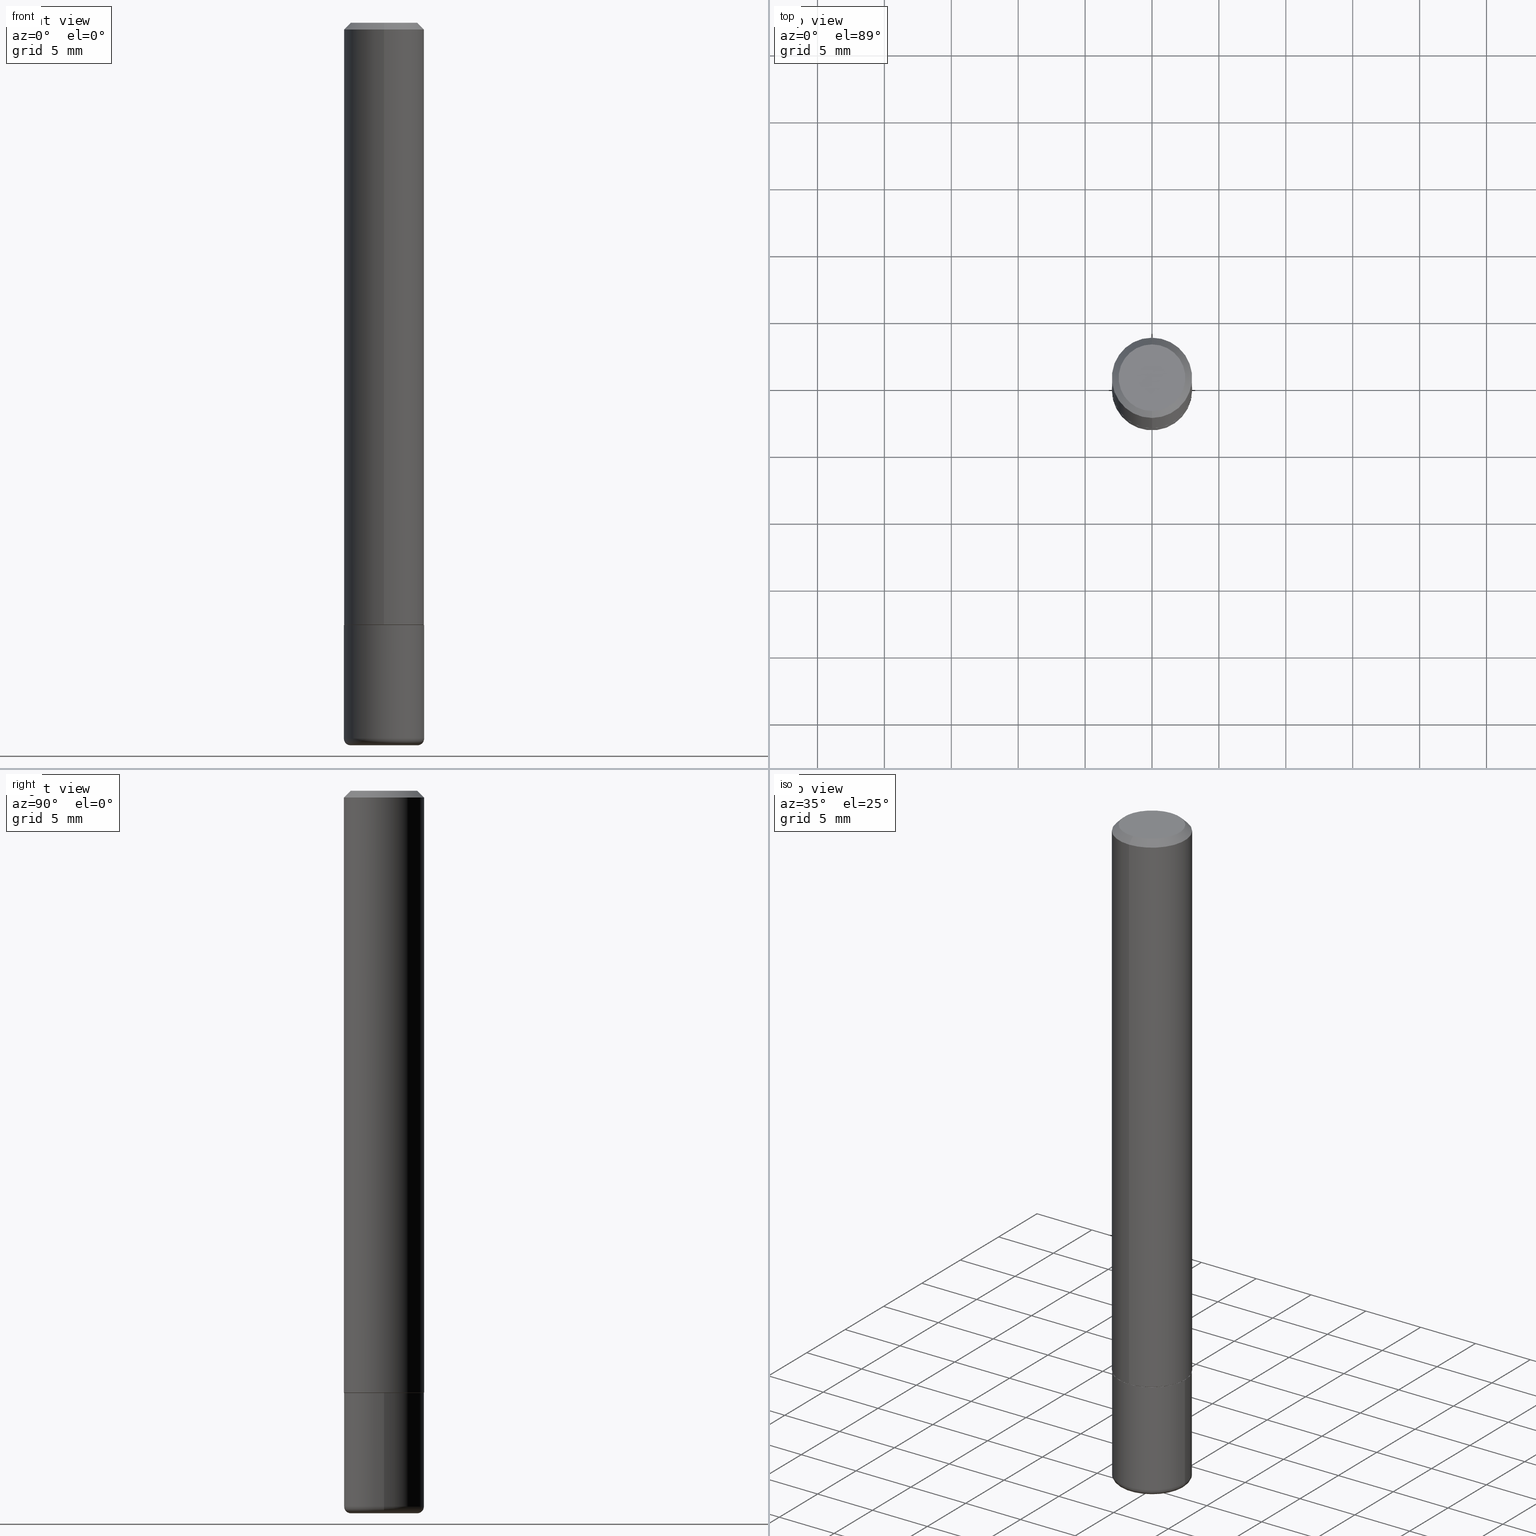
[diagram: canonical four-view strip — front | top / right | iso, engineering-drawing reading convention]
A machine part, canonical four-view strip (front | top / right | iso — engineering-drawing reading convention). The complete STEP part file that produces these views, byte-faithful:
ISO-10303-21;
HEADER;
FILE_DESCRIPTION (( 'STEP AP203' ),
    '1' );
FILE_NAME ('48000.STEP',
    '2024-03-06T19:44:10',
    ( '' ),
    ( '' ),
    'SwSTEP 2.0',
    'SolidWorks 2023',
    '' );
FILE_SCHEMA (( 'CONFIG_CONTROL_DESIGN' ));
ENDSEC;

DATA;
#1 = EDGE_LOOP ( 'NONE', ( #162, #202 ) ) ;
#2 = EDGE_LOOP ( 'NONE', ( #127, #259, #395, #104 ) ) ;
#3 = CARTESIAN_POINT ( 'NONE',  ( 8.355982572539224609E-16, 0.1170999999999938479, -1.771700000000000719 ) ) ;
#4 = ORIENTED_EDGE ( 'NONE', *, *, #182, .F. ) ;
#5 = AXIS2_PLACEMENT_3D ( 'NONE', #196, #264, #228 ) ;
#6 = ADVANCED_FACE ( 'NONE', ( #70 ), #74, .T. ) ;
#7 = ORIENTED_EDGE ( 'NONE', *, *, #145, .T. ) ;
#8 = CARTESIAN_POINT ( 'NONE',  ( -0.1181000000000000383, 8.391509709326785915E-16, -5.809262341591045886E-30 ) ) ;
#9 = EDGE_LOOP ( 'NONE', ( #177, #320, #408, #301 ) ) ;
#10 = PERSON_AND_ORGANIZATION ( #123, #98 ) ;
#11 = CARTESIAN_POINT ( 'NONE',  ( 4.320540136464565955E-29, -6.203181005297505252E-15, -1.771700000000000053 ) ) ;
#12 = AXIS2_PLACEMENT_3D ( 'NONE', #257, #95, #348 ) ;
#13 = EDGE_CURVE ( 'NONE', #164, #290, #186, .T. ) ;
#14 = APPROVAL_ROLE ( '' ) ;
#15 = COORDINATED_UNIVERSAL_TIME_OFFSET ( 5, 0, .BEHIND. ) ;
#16 = ADVANCED_FACE ( 'NONE', ( #212 ), #411, .T. ) ;
#17 = CARTESIAN_POINT ( 'NONE',  ( 8.246878922347486570E-16, 0.1180999999999999689, -0.02000000000000048961 ) ) ;
#18 = PERSON_AND_ORGANIZATION ( #123, #98 ) ;
#19 = CARTESIAN_POINT ( 'NONE',  ( 0.000000000000000000, 0.000000000000000000, 0.000000000000000000 ) ) ;
#20 = CIRCLE ( 'NONE', #12, 0.1181000000000000383 ) ;
#21 = PERSON_AND_ORGANIZATION ( #123, #98 ) ;
#22 = FACE_OUTER_BOUND ( 'NONE', #31, .T. ) ;
#23 = DIRECTION ( 'NONE',  ( 2.438088387897960049E-29, -3.491481338843145188E-15, -1.000000000000000000 ) ) ;
#24 = FACE_OUTER_BOUND ( 'NONE', #9, .T. ) ;
#25 = EDGE_CURVE ( 'NONE', #286, #195, #92, .T. ) ;
#26 = LINE ( 'NONE', #121, #312 ) ;
#27 = CONICAL_SURFACE ( 'NONE', #261, 0.1181000000000000383, 0.7853981633974471688 ) ;
#28 = CARTESIAN_POINT ( 'NONE',  ( 8.391509709327015671E-16, 0.1180999999999940708, -1.770700000000000385 ) ) ;
#29 = FACE_OUTER_BOUND ( 'NONE', #387, .T. ) ;
#30 = VECTOR ( 'NONE', #385, 39.37007874015748143 ) ;
#31 = EDGE_LOOP ( 'NONE', ( #136, #134, #35, #173 ) ) ;
#32 = EDGE_CURVE ( 'NONE', #197, #100, #154, .T. ) ;
#33 = CARTESIAN_POINT ( 'NONE',  ( 4.320540136464565955E-29, -6.203181005297505252E-15, -1.771700000000000053 ) ) ;
#34 = CARTESIAN_POINT ( 'NONE',  ( 8.391509709326791832E-16, 0.1181000000000001354, -4.134987168965605036E-16 ) ) ;
#35 = ORIENTED_EDGE ( 'NONE', *, *, #354, .T. ) ;
#36 = CARTESIAN_POINT ( 'NONE',  ( -5.748544850938659328E-45, 8.253427372768935186E-31, 2.357273996010603310E-16 ) ) ;
#37 = ORIENTED_EDGE ( 'NONE', *, *, #106, .F. ) ;
#38 = PRODUCT_DEFINITION ( 'UNKNOWN', '', #81, #47 ) ;
#39 = TOROIDAL_SURFACE ( 'NONE', #187, 0.09840000000000002911, 0.01969999999999989468 ) ;
#40 = ORIENTED_EDGE ( 'NONE', *, *, #55, .F. ) ;
#41 = ORIENTED_EDGE ( 'NONE', *, *, #362, .T. ) ;
#42 = PRODUCT_DEFINITION_SHAPE ( 'NONE', 'NONE',  #38 ) ;
#43 = APPROVAL_STATUS ( 'not_yet_approved' ) ;
#44 = DIRECTION ( 'NONE',  ( -6.982962677686265133E-15, -1.000000000000000000, 4.626330217890359081E-15 ) ) ;
#45 = CALENDAR_DATE ( 2024, 6, 3 ) ;
#46 = DIRECTION ( 'NONE',  ( -6.982962677686266711E-15, -1.000000000000000000, 4.665837734695579875E-15 ) ) ;
#47 = DESIGN_CONTEXT ( 'detailed design', #128, 'design' ) ;
#48 = EDGE_CURVE ( 'NONE', #169, #197, #237, .T. ) ;
#49 = APPROVAL_DATE_TIME ( #398, #347 ) ;
#50 = CARTESIAN_POINT ( 'NONE',  ( -0.09840000000000002911, -6.654933092017379713E-15, -2.106300000000000505 ) ) ;
#51 = APPROVAL_DATE_TIME ( #235, #379 ) ;
#52 = ORIENTED_EDGE ( 'NONE', *, *, #315, .F. ) ;
#53 = DATE_AND_TIME ( #45, #343 ) ;
#54 = DIRECTION ( 'NONE',  ( -6.982962677686265922E-15, -1.000000000000000000, 3.505890868245044514E-15 ) ) ;
#55 = EDGE_CURVE ( 'NONE', #273, #76, #208, .T. ) ;
#56 = AXIS2_PLACEMENT_3D ( 'NONE', #178, #299, #407 ) ;
#57 = CARTESIAN_POINT ( 'NONE',  ( 5.150890946467754134E-29, -7.354107144005318601E-15, -2.106300000000000505 ) ) ;
#58 = DIRECTION ( 'NONE',  ( 1.000000000000000000, -6.982962677686262766E-15, 0.000000000000000000 ) ) ;
#59 = CARTESIAN_POINT ( 'NONE',  ( -5.748544850938659328E-45, 8.253427372768935186E-31, 2.357273996010603310E-16 ) ) ;
#60 = CARTESIAN_POINT ( 'NONE',  ( 4.318101495534122596E-29, -6.199679746051978993E-15, -1.770699999999999719 ) ) ;
#61 = LOCAL_TIME ( 14, 44, 10.00000000000000000, #361 ) ;
#62 = PLANE ( 'NONE',  #360 ) ;
#63 = DIRECTION ( 'NONE',  ( -2.438640930442267577E-29, 3.501259245525487226E-15, 1.000000000000000000 ) ) ;
#64 = ADVANCED_FACE ( 'NONE', ( #296 ), #175, .T. ) ;
#65 = ORIENTED_EDGE ( 'NONE', *, *, #25, .T. ) ;
#66 = AXIS2_PLACEMENT_3D ( 'NONE', #198, #311, #132 ) ;
#67 = VERTEX_POINT ( 'NONE', #140 ) ;
#68 = DIRECTION ( 'NONE',  ( -2.438640930442267577E-29, 3.501259245525487621E-15, 1.000000000000000000 ) ) ;
#69 = ORIENTED_EDGE ( 'NONE', *, *, #330, .F. ) ;
#70 = FACE_OUTER_BOUND ( 'NONE', #370, .T. ) ;
#71 = CARTESIAN_POINT ( 'NONE',  ( 4.320540136464565955E-29, -6.203181005297505252E-15, -1.771700000000000053 ) ) ;
#72 = ORIENTED_EDGE ( 'NONE', *, *, #254, .T. ) ;
#73 = DIRECTION ( 'NONE',  ( -2.445468806185136597E-29, 3.491481338843145583E-15, 1.000000000000000000 ) ) ;
#74 = CONICAL_SURFACE ( 'NONE', #326, 0.1171000000000000513, 0.7853981633973801113 ) ;
#75 = VECTOR ( 'NONE', #183, 39.37007874015748143 ) ;
#76 = VERTEX_POINT ( 'NONE', #405 ) ;
#77 = PERSON_AND_ORGANIZATION ( #123, #98 ) ;
#78 = ADVANCED_FACE ( 'NONE', ( #117 ), #148, .T. ) ;
#79 = DATE_TIME_ROLE ( 'creation_date' ) ;
#80 = DIRECTION ( 'NONE',  ( -2.438640930442267577E-29, 3.501259245525487226E-15, 1.000000000000000000 ) ) ;
#81 = PRODUCT_DEFINITION_FORMATION_WITH_SPECIFIED_SOURCE ( 'ANY', '', #372, .NOT_KNOWN. ) ;
#82 = CALENDAR_DATE ( 2024, 6, 3 ) ;
#83 = APPLICATION_PROTOCOL_DEFINITION ( 'international standard', 'config_control_design', 1994, #128 ) ;
#84 = DIRECTION ( 'NONE',  ( 2.438640930442267017E-29, -3.501259245525487621E-15, -1.000000000000000000 ) ) ;
#85 = DIRECTION ( 'NONE',  ( -4.851104656540957964E-15, -0.7071067811865491270, -0.7071067811865459074 ) ) ;
#86 = TOROIDAL_SURFACE ( 'NONE', #125, 0.09840000000000002911, 0.01969999999999989468 ) ;
#87 = CARTESIAN_POINT ( 'NONE',  ( 0.09840000000000002911, -8.110012853864857257E-15, -2.126000000000000334 ) ) ;
#88 = DIRECTION ( 'NONE',  ( -2.445468806185136597E-29, 3.491481338843145583E-15, 1.000000000000000000 ) ) ;
#89 = CC_DESIGN_PERSON_AND_ORGANIZATION_ASSIGNMENT ( #10, #205, ( #81 ) ) ;
#90 = ADVANCED_FACE ( 'NONE', ( #204 ), #371, .F. ) ;
#91 = CARTESIAN_POINT ( 'NONE',  ( -0.1180999999999999828, -6.514956173072640404E-15, -2.106300000000000505 ) ) ;
#92 = CIRCLE ( 'NONE', #274, 0.01969999999999989468 ) ;
#93 = CIRCLE ( 'NONE', #115, 0.1181000000000000383 ) ;
#94 = DIRECTION ( 'NONE',  ( 1.000000000000000000, -6.982962677686269077E-15, 4.883557194083113462E-29 ) ) ;
#95 = DIRECTION ( 'NONE',  ( -2.445468806185136597E-29, 3.491481338843145583E-15, 1.000000000000000000 ) ) ;
#96 = EDGE_LOOP ( 'NONE', ( #392, #166, #238, #289 ) ) ;
#97 =( CONVERSION_BASED_UNIT ( 'INCH', #159 ) LENGTH_UNIT ( ) NAMED_UNIT ( #308 ) );
#98 = ORGANIZATION ( 'UNSPECIFIED', 'UNSPECIFIED', '' ) ;
#99 = LINE ( 'NONE', #346, #241 ) ;
#100 = VERTEX_POINT ( 'NONE', #333 ) ;
#101 = ORIENTED_EDGE ( 'NONE', *, *, #338, .T. ) ;
#102 = MECHANICAL_CONTEXT ( 'NONE', #171, 'mechanical' ) ;
#103 = CIRCLE ( 'NONE', #141, 0.09840000000000002911 ) ;
#104 = ORIENTED_EDGE ( 'NONE', *, *, #48, .F. ) ;
#105 = DATE_TIME_ROLE ( 'classification_date' ) ;
#106 = EDGE_CURVE ( 'NONE', #100, #197, #209, .T. ) ;
#107 = ORIENTED_EDGE ( 'NONE', *, *, #13, .T. ) ;
#108 = CALENDAR_DATE ( 2024, 6, 3 ) ;
#109 = CARTESIAN_POINT ( 'NONE',  ( 4.877281860884553932E-31, -7.002518491051000929E-17, -0.02000000000000007674 ) ) ;
#110 = MANIFOLD_SOLID_BREP ( 'Body-Move/Copy2[1]', #251 ) ;
#111 = PERSON_AND_ORGANIZATION ( #123, #98 ) ;
#112 = DIRECTION ( 'NONE',  ( 1.000000000000000000, -6.982962677686270655E-15, 0.000000000000000000 ) ) ;
#113 = CC_DESIGN_PERSON_AND_ORGANIZATION_ASSIGNMENT ( #111, #292, ( #372 ) ) ;
#114 = CC_DESIGN_APPROVAL ( #379, ( #38 ) ) ;
#115 = AXIS2_PLACEMENT_3D ( 'NONE', #57, #88, #58 ) ;
#116 = PERSON_AND_ORGANIZATION_ROLE ( 'creator' ) ;
#117 = FACE_OUTER_BOUND ( 'NONE', #2, .T. ) ;
#118 = CARTESIAN_POINT ( 'NONE',  ( 0.000000000000000000, 0.000000000000000000, 0.000000000000000000 ) ) ;
#119 = CARTESIAN_POINT ( 'NONE',  ( -8.177049295570189596E-16, -0.1171000000000062408, -1.771699999999999608 ) ) ;
#120 = VECTOR ( 'NONE', #284, 39.37007874015748143 ) ;
#121 = CARTESIAN_POINT ( 'NONE',  ( -8.102248135368175393E-16, -0.1181000000000001077, -0.01999999999999966388 ) ) ;
#122 = DIRECTION ( 'NONE',  ( 1.000000000000000000, -6.982962677686262766E-15, 0.000000000000000000 ) ) ;
#123 = PERSON ( 'UNSPECIFIED', 'UNSPECIFIED', 'UNSPECIFIED', ('UNSPECIFIED'), ('UNSPECIFIED'), ('UNSPECIFIED') ) ;
#124 = FACE_OUTER_BOUND ( 'NONE', #1, .T. ) ;
#125 = AXIS2_PLACEMENT_3D ( 'NONE', #279, #410, #94 ) ;
#126 = CARTESIAN_POINT ( 'NONE',  ( 5.150890946467754134E-29, -7.354107144005318601E-15, -2.106300000000000505 ) ) ;
#127 = ORIENTED_EDGE ( 'NONE', *, *, #366, .F. ) ;
#128 = APPLICATION_CONTEXT ( 'configuration controlled 3d designs of mechanical parts and assemblies' ) ;
#129 = DIRECTION ( 'NONE',  ( 0.000000000000000000, 0.000000000000000000, 1.000000000000000000 ) ) ;
#130 = ADVANCED_FACE ( 'NONE', ( #22 ), #276, .T. ) ;
#131 = EDGE_LOOP ( 'NONE', ( #107, #41, #37, #334 ) ) ;
#132 = DIRECTION ( 'NONE',  ( -6.982962677686266711E-15, -1.000000000000000000, 4.665837734695579875E-15 ) ) ;
#133 = CIRCLE ( 'NONE', #418, 0.1181000000000000383 ) ;
#134 = ORIENTED_EDGE ( 'NONE', *, *, #258, .T. ) ;
#135 = CARTESIAN_POINT ( 'NONE',  ( 0.09840000000000002911, -8.041230671489647649E-15, -2.106300000000000505 ) ) ;
#136 = ORIENTED_EDGE ( 'NONE', *, *, #362, .F. ) ;
#137 =( LENGTH_UNIT ( ) NAMED_UNIT ( * ) SI_UNIT ( $, .METRE. ) );
#138 = ORIENTED_EDGE ( 'NONE', *, *, #375, .F. ) ;
#139 = ADVANCED_FACE ( 'NONE', ( #412 ), #339, .T. ) ;
#140 = CARTESIAN_POINT ( 'NONE',  ( 0.1180999999999999828, -8.178795036240066864E-15, -2.106300000000000505 ) ) ;
#141 = AXIS2_PLACEMENT_3D ( 'NONE', #218, #153, #302 ) ;
#142 = DATE_AND_TIME ( #239, #61 ) ;
#143 = CARTESIAN_POINT ( 'NONE',  ( 4.318101495534122596E-29, -6.199679746051978993E-15, -1.770699999999999719 ) ) ;
#144 = DIRECTION ( 'NONE',  ( -2.438640930442267577E-29, 3.501259245525487226E-15, 1.000000000000000000 ) ) ;
#145 = EDGE_CURVE ( 'NONE', #169, #324, #368, .T. ) ;
#146 = ORIENTED_EDGE ( 'NONE', *, *, #188, .T. ) ;
#147 = DIRECTION ( 'NONE',  ( -6.982962677686265922E-15, -1.000000000000000000, 3.501259245525487226E-15 ) ) ;
#148 = CONICAL_SURFACE ( 'NONE', #298, 0.1181000000000000383, 0.7853981633974471688 ) ;
#149 = AXIS2_PLACEMENT_3D ( 'NONE', #36, #63, #200 ) ;
#150 = ORIENTED_EDGE ( 'NONE', *, *, #366, .T. ) ;
#151 = CARTESIAN_POINT ( 'NONE',  ( -8.246878922347066502E-16, -0.1181000000000064498, -1.770699999999999275 ) ) ;
#152 = EDGE_CURVE ( 'NONE', #324, #100, #26, .T. ) ;
#153 = DIRECTION ( 'NONE',  ( -2.445468806185136597E-29, 3.491481338843145583E-15, 1.000000000000000000 ) ) ;
#154 = CIRCLE ( 'NONE', #386, 0.1181000000000000383 ) ;
#155 = DIRECTION ( 'NONE',  ( -6.982962677686265922E-15, -1.000000000000000000, 3.501259245525487621E-15 ) ) ;
#156 = CARTESIAN_POINT ( 'NONE',  ( -8.177049295570189596E-16, -0.1171000000000062408, -1.771699999999999608 ) ) ;
#157 = DIRECTION ( 'NONE',  ( -1.000000000000000000, 6.982962677686265922E-15, -4.876176775795935793E-29 ) ) ;
#158 = AXIS2_PLACEMENT_3D ( 'NONE', #59, #416, #309 ) ;
#159 = LENGTH_MEASURE_WITH_UNIT ( LENGTH_MEASURE( 0.02539999999999999897 ), #137 );
#160 = VERTEX_POINT ( 'NONE', #119 ) ;
#161 = CARTESIAN_POINT ( 'NONE',  ( 0.1181000000000000383, -8.246878922347483612E-16, 5.758764772215001842E-30 ) ) ;
#162 = ORIENTED_EDGE ( 'NONE', *, *, #409, .F. ) ;
#163 = CARTESIAN_POINT ( 'NONE',  ( 4.877281860884553932E-31, -7.002518491051000929E-17, -0.02000000000000007674 ) ) ;
#164 = VERTEX_POINT ( 'NONE', #151 ) ;
#165 = AXIS2_PLACEMENT_3D ( 'NONE', #303, #185, #155 ) ;
#166 = ORIENTED_EDGE ( 'NONE', *, *, #182, .T. ) ;
#167 = DIRECTION ( 'NONE',  ( 6.982962677686265922E-15, 1.000000000000000000, -3.505890868245044514E-15 ) ) ;
#168 = EDGE_CURVE ( 'NONE', #195, #67, #133, .T. ) ;
#169 = VERTEX_POINT ( 'NONE', #248 ) ;
#170 = APPROVAL ( #401, 'UNSPECIFIED' ) ;
#171 = APPLICATION_CONTEXT ( 'configuration controlled 3d designs of mechanical parts and assemblies' ) ;
#172 = DIRECTION ( 'NONE',  ( -1.000000000000000000, 7.105427357601014480E-15, 0.000000000000000000 ) ) ;
#173 = ORIENTED_EDGE ( 'NONE', *, *, #32, .F. ) ;
#174 = PERSON_AND_ORGANIZATION ( #123, #98 ) ;
#175 = CYLINDRICAL_SURFACE ( 'NONE', #240, 0.1181000000000001354 ) ;
#176 = CARTESIAN_POINT ( 'NONE',  ( 4.332637083918206427E-29, -6.185857488028401081E-15, -1.771700000000000053 ) ) ;
#177 = ORIENTED_EDGE ( 'NONE', *, *, #415, .F. ) ;
#178 = CARTESIAN_POINT ( 'NONE',  ( 4.877281860884553932E-31, -7.002518491051000929E-17, -0.02000000000000007674 ) ) ;
#179 = AXIS2_PLACEMENT_3D ( 'NONE', #11, #272, #295 ) ;
#180 = ORIENTED_EDGE ( 'NONE', *, *, #315, .T. ) ;
#181 = CARTESIAN_POINT ( 'NONE',  ( 4.332637083918206427E-29, -6.185857488028401081E-15, -1.771700000000000053 ) ) ;
#182 = EDGE_CURVE ( 'NONE', #286, #232, #103, .T. ) ;
#183 = DIRECTION ( 'NONE',  ( 5.024295867787719235E-15, 0.7071067811865017205, 0.7071067811865933139 ) ) ;
#184 = CC_DESIGN_PERSON_AND_ORGANIZATION_ASSIGNMENT ( #271, #268, ( #403 ) ) ;
#185 = DIRECTION ( 'NONE',  ( -2.438640930442267017E-29, 3.501259245525487621E-15, 1.000000000000000000 ) ) ;
#186 = CIRCLE ( 'NONE', #349, 0.1181000000000002603 ) ;
#187 = AXIS2_PLACEMENT_3D ( 'NONE', #305, #250, #340 ) ;
#188 = EDGE_CURVE ( 'NONE', #160, #164, #253, .T. ) ;
#189 = DIRECTION ( 'NONE',  ( -2.438640930442267577E-29, 3.501259245525487226E-15, 1.000000000000000000 ) ) ;
#190 = CARTESIAN_POINT ( 'NONE',  ( 5.199066681949600871E-29, -7.422889326380528208E-15, -2.126000000000000334 ) ) ;
#191 = LINE ( 'NONE', #161, #30 ) ;
#192 = EDGE_LOOP ( 'NONE', ( #358, #227, #317, #214 ) ) ;
#193 = AXIS2_PLACEMENT_3D ( 'NONE', #71, #352, #285 ) ;
#194 = DIRECTION ( 'NONE',  ( 2.438640930442267577E-29, -3.501259245525487226E-15, -1.000000000000000000 ) ) ;
#195 = VERTEX_POINT ( 'NONE', #91 ) ;
#196 = CARTESIAN_POINT ( 'NONE',  ( 5.199066681949600871E-29, -7.422889326380528208E-15, -2.126000000000000334 ) ) ;
#197 = VERTEX_POINT ( 'NONE', #345 ) ;
#198 = CARTESIAN_POINT ( 'NONE',  ( 4.320540136464565955E-29, -6.203181005297505252E-15, -1.771700000000000053 ) ) ;
#199 = EDGE_LOOP ( 'NONE', ( #265, #4 ) ) ;
#200 = DIRECTION ( 'NONE',  ( -6.982962677686265922E-15, -1.000000000000000000, 3.501259245525487621E-15 ) ) ;
#201 = CIRCLE ( 'NONE', #149, 0.09809999999999977072 ) ;
#202 = ORIENTED_EDGE ( 'NONE', *, *, #393, .F. ) ;
#203 = SECURITY_CLASSIFICATION_LEVEL ( 'unclassified' ) ;
#204 = FACE_OUTER_BOUND ( 'NONE', #283, .T. ) ;
#205 = PERSON_AND_ORGANIZATION_ROLE ( 'design_supplier' ) ;
#206 = ADVANCED_FACE ( 'NONE', ( #335 ), #39, .T. ) ;
#207 = CARTESIAN_POINT ( 'NONE',  ( 4.877281860884553932E-31, -7.002518491051000929E-17, -0.02000000000000007674 ) ) ;
#208 = CIRCLE ( 'NONE', #260, 0.1181000000000000383 ) ;
#209 = CIRCLE ( 'NONE', #56, 0.1181000000000000383 ) ;
#210 = ADVANCED_FACE ( 'NONE', ( #124 ), #249, .F. ) ;
#211 = COORDINATED_UNIVERSAL_TIME_OFFSET ( 5, 0, .BEHIND. ) ;
#212 = FACE_OUTER_BOUND ( 'NONE', #234, .T. ) ;
#213 = DIRECTION ( 'NONE',  ( 6.982962677686265922E-15, 1.000000000000000000, -3.501259245525487621E-15 ) ) ;
#214 = ORIENTED_EDGE ( 'NONE', *, *, #32, .T. ) ;
#215 = CARTESIAN_POINT ( 'NONE',  ( 8.320455435751206749E-16, 0.1170999999999938479, -1.771700000000000719 ) ) ;
#216 = AXIS2_PLACEMENT_3D ( 'NONE', #118, #244, #373 ) ;
#217 = DIRECTION ( 'NONE',  ( -6.982962677686265133E-15, -1.000000000000000000, 4.626330217890359081E-15 ) ) ;
#218 = CARTESIAN_POINT ( 'NONE',  ( 5.199066681949600871E-29, -7.422889326380528208E-15, -2.126000000000000334 ) ) ;
#219 = DIRECTION ( 'NONE',  ( -2.445468806185136597E-29, 3.491481338843145583E-15, 1.000000000000000000 ) ) ;
#220 = ADVANCED_FACE ( 'NONE', ( #29 ), #86, .T. ) ;
#221 = FACE_OUTER_BOUND ( 'NONE', #199, .T. ) ;
#222 = FACE_OUTER_BOUND ( 'NONE', #192, .T. ) ;
#223 = CARTESIAN_POINT ( 'NONE',  ( 0.000000000000000000, 0.000000000000000000, 0.000000000000000000 ) ) ;
#224 = ORIENTED_EDGE ( 'NONE', *, *, #400, .T. ) ;
#225 = AXIS2_PLACEMENT_3D ( 'NONE', #223, #129, #226 ) ;
#226 = DIRECTION ( 'NONE',  ( 1.000000000000000000, 0.000000000000000000, 0.000000000000000000 ) ) ;
#227 = ORIENTED_EDGE ( 'NONE', *, *, #145, .F. ) ;
#228 = DIRECTION ( 'NONE',  ( 1.000000000000000000, -6.982962677686269866E-15, 0.000000000000000000 ) ) ;
#229 = ORIENTED_EDGE ( 'NONE', *, *, #258, .F. ) ;
#230 = CC_DESIGN_DATE_AND_TIME_ASSIGNMENT ( #331, #79, ( #38 ) ) ;
#231 = CYLINDRICAL_SURFACE ( 'NONE', #382, 0.1181000000000000383 ) ;
#232 = VERTEX_POINT ( 'NONE', #87 ) ;
#233 = APPROVAL_ROLE ( '' ) ;
#234 = EDGE_LOOP ( 'NONE', ( #353, #390, #146, #229 ) ) ;
#235 = DATE_AND_TIME ( #266, #341 ) ;
#236 = COORDINATED_UNIVERSAL_TIME_OFFSET ( 5, 0, .BEHIND. ) ;
#237 = LINE ( 'NONE', #17, #381 ) ;
#238 = ORIENTED_EDGE ( 'NONE', *, *, #330, .T. ) ;
#239 = CALENDAR_DATE ( 2024, 6, 3 ) ;
#240 = AXIS2_PLACEMENT_3D ( 'NONE', #19, #80, #147 ) ;
#241 = VECTOR ( 'NONE', #68, 39.37007874015748143 ) ;
#242 = LOCAL_TIME ( 14, 44, 10.00000000000000000, #367 ) ;
#243 = DIRECTION ( 'NONE',  ( 6.982962677686265922E-15, 1.000000000000000000, -3.505890868245044514E-15 ) ) ;
#244 = DIRECTION ( 'NONE',  ( -2.438640930442267577E-29, 3.501259245525487226E-15, 1.000000000000000000 ) ) ;
#245 = EDGE_LOOP ( 'NONE', ( #350, #224 ) ) ;
#246 = CARTESIAN_POINT ( 'NONE',  ( 0.1181000000000000383, -7.010545380263150133E-15, -1.771700000000000053 ) ) ;
#247 = CIRCLE ( 'NONE', #66, 0.1171000000000000513 ) ;
#248 = CARTESIAN_POINT ( 'NONE',  ( 7.548582654578848658E-16, 0.09809999999999977072, -1.077461323849892512E-16 ) ) ;
#249 = PLANE ( 'NONE',  #165 ) ;
#250 = DIRECTION ( 'NONE',  ( -2.445468806185136597E-29, 3.491481338843145583E-15, 1.000000000000000000 ) ) ;
#251 = CLOSED_SHELL ( 'NONE', ( #139, #220, #310, #318, #206, #291 ) ) ;
#252 = MANIFOLD_SOLID_BREP ( 'Body-Move/Copy2[2]', #359 ) ;
#253 = LINE ( 'NONE', #156, #282 ) ;
#254 = EDGE_CURVE ( 'NONE', #397, #290, #414, .T. ) ;
#255 = APPLICATION_PROTOCOL_DEFINITION ( 'international standard', 'config_control_design', 1994, #171 ) ;
#256 = EDGE_LOOP ( 'NONE', ( #180, #263, #40, #138 ) ) ;
#257 = CARTESIAN_POINT ( 'NONE',  ( 4.332637083918206427E-29, -6.185857488028401081E-15, -1.771700000000000053 ) ) ;
#258 = EDGE_CURVE ( 'NONE', #290, #164, #293, .T. ) ;
#259 = ORIENTED_EDGE ( 'NONE', *, *, #152, .T. ) ;
#260 = AXIS2_PLACEMENT_3D ( 'NONE', #176, #369, #112 ) ;
#261 = AXIS2_PLACEMENT_3D ( 'NONE', #163, #194, #167 ) ;
#262 = CARTESIAN_POINT ( 'NONE',  ( -7.416198335591016162E-16, -0.09809999999999977072, 5.792009315871098022E-16 ) ) ;
#263 = ORIENTED_EDGE ( 'NONE', *, *, #415, .T. ) ;
#264 = DIRECTION ( 'NONE',  ( -2.445468806185136597E-29, 3.491481338843145583E-15, 1.000000000000000000 ) ) ;
#265 = ORIENTED_EDGE ( 'NONE', *, *, #338, .F. ) ;
#266 = CALENDAR_DATE ( 2024, 6, 3 ) ;
#267 = ORIENTED_EDGE ( 'NONE', *, *, #13, .F. ) ;
#268 = PERSON_AND_ORGANIZATION_ROLE ( 'classification_officer' ) ;
#269 = AXIS2_PLACEMENT_3D ( 'NONE', #60, #189, #217 ) ;
#270 = CARTESIAN_POINT ( 'NONE',  ( 6.850286386810210746E-16, 0.09809999999999977072, -2.256098321855192811E-16 ) ) ;
#271 = PERSON_AND_ORGANIZATION ( #123, #98 ) ;
#272 = DIRECTION ( 'NONE',  ( -2.438640930442267577E-29, 3.501259245525487226E-15, 1.000000000000000000 ) ) ;
#273 = VERTEX_POINT ( 'NONE', #246 ) ;
#274 = AXIS2_PLACEMENT_3D ( 'NONE', #50, #399, #172 ) ;
#275 = CIRCLE ( 'NONE', #5, 0.09840000000000002911 ) ;
#276 = CYLINDRICAL_SURFACE ( 'NONE', #216, 0.1181000000000001354 ) ;
#277 = CARTESIAN_POINT ( 'NONE',  ( 0.000000000000000000, 0.000000000000000000, 0.000000000000000000 ) ) ;
#278 = AXIS2_PLACEMENT_3D ( 'NONE', #181, #23, #417 ) ;
#279 = CARTESIAN_POINT ( 'NONE',  ( 5.150890946467754134E-29, -7.354107144005318601E-15, -2.106300000000000505 ) ) ;
#280 = CC_DESIGN_DATE_AND_TIME_ASSIGNMENT ( #53, #105, ( #403 ) ) ;
#281 = PLANE ( 'NONE',  #278 ) ;
#282 = VECTOR ( 'NONE', #378, 39.37007874015748143 ) ;
#283 = EDGE_LOOP ( 'NONE', ( #7, #150 ) ) ;
#284 = DIRECTION ( 'NONE',  ( -2.445468806185136877E-29, 3.491481338843145188E-15, 1.000000000000000000 ) ) ;
#285 = DIRECTION ( 'NONE',  ( -6.982962677686266711E-15, -1.000000000000000000, 4.665837734695579875E-15 ) ) ;
#286 = VERTEX_POINT ( 'NONE', #307 ) ;
#287 = AXIS2_PLACEMENT_3D ( 'NONE', #277, #337, #380 ) ;
#288 =( NAMED_UNIT ( * ) PLANE_ANGLE_UNIT ( ) SI_UNIT ( $, .RADIAN. ) );
#289 = ORIENTED_EDGE ( 'NONE', *, *, #168, .F. ) ;
#290 = VERTEX_POINT ( 'NONE', #28 ) ;
#291 = ADVANCED_FACE ( 'NONE', ( #221 ), #62, .T. ) ;
#292 = PERSON_AND_ORGANIZATION_ROLE ( 'design_owner' ) ;
#293 = CIRCLE ( 'NONE', #269, 0.1181000000000002603 ) ;
#294 = PERSON_AND_ORGANIZATION ( #123, #98 ) ;
#295 = DIRECTION ( 'NONE',  ( -6.982962677686266711E-15, -1.000000000000000000, 4.665837734695579875E-15 ) ) ;
#296 = FACE_OUTER_BOUND ( 'NONE', #131, .T. ) ;
#297 = CC_DESIGN_PERSON_AND_ORGANIZATION_ASSIGNMENT ( #174, #325, ( #38 ) ) ;
#298 = AXIS2_PLACEMENT_3D ( 'NONE', #207, #329, #243 ) ;
#299 = DIRECTION ( 'NONE',  ( -2.438640930442267577E-29, 3.501259245525487226E-15, 1.000000000000000000 ) ) ;
#300 = CIRCLE ( 'NONE', #336, 0.01969999999999989468 ) ;
#301 = ORIENTED_EDGE ( 'NONE', *, *, #400, .F. ) ;
#302 = DIRECTION ( 'NONE',  ( 1.000000000000000000, -6.982962677686269866E-15, 0.000000000000000000 ) ) ;
#303 = CARTESIAN_POINT ( 'NONE',  ( 4.320540136464565955E-29, -6.203181005297505252E-15, -1.771700000000000053 ) ) ;
#304 = PRODUCT_RELATED_PRODUCT_CATEGORY ( 'detail', '', ( #372 ) ) ;
#305 = CARTESIAN_POINT ( 'NONE',  ( 5.150890946467754134E-29, -7.354107144005318601E-15, -2.106300000000000505 ) ) ;
#306 = APPROVAL_PERSON_ORGANIZATION ( #18, #170, #394 ) ;
#307 = CARTESIAN_POINT ( 'NONE',  ( -0.09840000000000002911, -6.619335723732615256E-15, -2.126000000000000334 ) ) ;
#308 = DIMENSIONAL_EXPONENTS ( 1.000000000000000000, 0.000000000000000000, 0.000000000000000000, 0.000000000000000000, 0.000000000000000000, 0.000000000000000000, 0.000000000000000000 ) ;
#309 = DIRECTION ( 'NONE',  ( -6.982962677686265922E-15, -1.000000000000000000, 3.501259245525487621E-15 ) ) ;
#310 = ADVANCED_FACE ( 'NONE', ( #377 ), #281, .F. ) ;
#311 = DIRECTION ( 'NONE',  ( -2.438640930442267577E-29, 3.501259245525487226E-15, 1.000000000000000000 ) ) ;
#312 = VECTOR ( 'NONE', #85, 39.37007874015748143 ) ;
#313 = DIRECTION ( 'NONE',  ( 1.000000000000000000, -6.982962677686266711E-15, 0.000000000000000000 ) ) ;
#314 = ORIENTED_EDGE ( 'NONE', *, *, #188, .F. ) ;
#315 = EDGE_CURVE ( 'NONE', #67, #195, #93, .T. ) ;
#316 = LINE ( 'NONE', #34, #351 ) ;
#317 = ORIENTED_EDGE ( 'NONE', *, *, #48, .T. ) ;
#318 = ADVANCED_FACE ( 'NONE', ( #24 ), #231, .T. ) ;
#319 = LINE ( 'NONE', #8, #120 ) ;
#320 = ORIENTED_EDGE ( 'NONE', *, *, #168, .T. ) ;
#321 = AXIS2_PLACEMENT_3D ( 'NONE', #270, #84, #213 ) ;
#322 = UNCERTAINTY_MEASURE_WITH_UNIT (LENGTH_MEASURE( 1.000000000000000082E-05 ), #97, 'distance_accuracy_value', 'NONE');
#323 = CC_DESIGN_APPROVAL ( #347, ( #403 ) ) ;
#324 = VERTEX_POINT ( 'NONE', #262 ) ;
#325 = PERSON_AND_ORGANIZATION_ROLE ( 'creator' ) ;
#326 = AXIS2_PLACEMENT_3D ( 'NONE', #33, #144, #46 ) ;
#327 = APPROVAL_DATE_TIME ( #142, #170 ) ;
#328 = APPROVAL_PERSON_ORGANIZATION ( #21, #379, #14 ) ;
#329 = DIRECTION ( 'NONE',  ( 2.438640930442267577E-29, -3.501259245525487226E-15, -1.000000000000000000 ) ) ;
#330 = EDGE_CURVE ( 'NONE', #232, #67, #300, .T. ) ;
#331 = DATE_AND_TIME ( #108, #388 ) ;
#332 = DIRECTION ( 'NONE',  ( -2.438640930442267577E-29, 3.501259245525487226E-15, 1.000000000000000000 ) ) ;
#333 = CARTESIAN_POINT ( 'NONE',  ( -8.102248135368175393E-16, -0.1181000000000001077, -0.01999999999999966388 ) ) ;
#334 = ORIENTED_EDGE ( 'NONE', *, *, #354, .F. ) ;
#335 = FACE_OUTER_BOUND ( 'NONE', #96, .T. ) ;
#336 = AXIS2_PLACEMENT_3D ( 'NONE', #135, #389, #313 ) ;
#337 = DIRECTION ( 'NONE',  ( -2.445468806185136597E-29, 3.491481338843145583E-15, 1.000000000000000000 ) ) ;
#338 = EDGE_CURVE ( 'NONE', #232, #286, #275, .T. ) ;
#339 = CYLINDRICAL_SURFACE ( 'NONE', #287, 0.1181000000000000383 ) ;
#340 = DIRECTION ( 'NONE',  ( 1.000000000000000000, -6.982962677686269077E-15, 4.883557194083113462E-29 ) ) ;
#341 = LOCAL_TIME ( 14, 44, 10.00000000000000000, #15 ) ;
#342 = CC_DESIGN_APPROVAL ( #170, ( #81 ) ) ;
#343 = LOCAL_TIME ( 14, 44, 10.00000000000000000, #236 ) ;
#344 = ADVANCED_FACE ( 'NONE', ( #222 ), #27, .T. ) ;
#345 = CARTESIAN_POINT ( 'NONE',  ( 8.246878922347486570E-16, 0.1180999999999999689, -0.02000000000000048961 ) ) ;
#346 = CARTESIAN_POINT ( 'NONE',  ( -8.246878922347489529E-16, -0.1181000000000001354, 4.134987168965605036E-16 ) ) ;
#347 = APPROVAL ( #43, 'UNSPECIFIED' ) ;
#348 = DIRECTION ( 'NONE',  ( 1.000000000000000000, -6.982962677686270655E-15, 0.000000000000000000 ) ) ;
#349 = AXIS2_PLACEMENT_3D ( 'NONE', #143, #332, #44 ) ;
#350 = ORIENTED_EDGE ( 'NONE', *, *, #55, .T. ) ;
#351 = VECTOR ( 'NONE', #355, 39.37007874015748143 ) ;
#352 = DIRECTION ( 'NONE',  ( -2.438640930442267577E-29, 3.501259245525487226E-15, 1.000000000000000000 ) ) ;
#353 = ORIENTED_EDGE ( 'NONE', *, *, #254, .F. ) ;
#354 = EDGE_CURVE ( 'NONE', #164, #100, #99, .T. ) ;
#355 = DIRECTION ( 'NONE',  ( -2.438640930442267577E-29, 3.501259245525487621E-15, 1.000000000000000000 ) ) ;
#356 = ORIENTED_EDGE ( 'NONE', *, *, #409, .T. ) ;
#357 = CARTESIAN_POINT ( 'NONE',  ( 0.000000000000000000, 0.000000000000000000, 0.000000000000000000 ) ) ;
#358 = ORIENTED_EDGE ( 'NONE', *, *, #152, .F. ) ;
#359 = CLOSED_SHELL ( 'NONE', ( #6, #64, #78, #344, #130, #16, #210, #90 ) ) ;
#360 = AXIS2_PLACEMENT_3D ( 'NONE', #190, #374, #157 ) ;
#361 = COORDINATED_UNIVERSAL_TIME_OFFSET ( 5, 0, .BEHIND. ) ;
#362 = EDGE_CURVE ( 'NONE', #290, #197, #316, .T. ) ;
#363 = ADVANCED_BREP_SHAPE_REPRESENTATION ( '48000', ( #110, #252, #225 ), #413 ) ;
#364 = SHAPE_DEFINITION_REPRESENTATION ( #42, #363 ) ;
#365 = DIRECTION ( 'NONE',  ( 4.937700262164541731E-15, 0.7071067811865442421, -0.7071067811865507924 ) ) ;
#366 = EDGE_CURVE ( 'NONE', #324, #169, #201, .T. ) ;
#367 = COORDINATED_UNIVERSAL_TIME_OFFSET ( 5, 0, .BEHIND. ) ;
#368 = CIRCLE ( 'NONE', #158, 0.09809999999999977072 ) ;
#369 = DIRECTION ( 'NONE',  ( -2.445468806185136597E-29, 3.491481338843145583E-15, 1.000000000000000000 ) ) ;
#370 = EDGE_LOOP ( 'NONE', ( #356, #72, #267, #314 ) ) ;
#371 = PLANE ( 'NONE',  #321 ) ;
#372 = PRODUCT ( '48000', '48000', '', ( #102 ) ) ;
#373 = DIRECTION ( 'NONE',  ( -6.982962677686265922E-15, -1.000000000000000000, 3.501259245525487226E-15 ) ) ;
#374 = DIRECTION ( 'NONE',  ( 2.438088387897960049E-29, -3.491481338843145188E-15, -1.000000000000000000 ) ) ;
#375 = EDGE_CURVE ( 'NONE', #67, #273, #191, .T. ) ;
#376 = CIRCLE ( 'NONE', #193, 0.1171000000000000513 ) ;
#377 = FACE_OUTER_BOUND ( 'NONE', #245, .T. ) ;
#378 = DIRECTION ( 'NONE',  ( -4.937700262164211199E-15, -0.7071067811864968355, 0.7071067811865981989 ) ) ;
#379 = APPROVAL ( #396, 'UNSPECIFIED' ) ;
#380 = DIRECTION ( 'NONE',  ( 1.000000000000000000, -6.982962677686266711E-15, 4.876176775795935793E-29 ) ) ;
#381 = VECTOR ( 'NONE', #365, 39.37007874015748143 ) ;
#382 = AXIS2_PLACEMENT_3D ( 'NONE', #357, #73, #384 ) ;
#383 = CC_DESIGN_PERSON_AND_ORGANIZATION_ASSIGNMENT ( #77, #116, ( #81 ) ) ;
#384 = DIRECTION ( 'NONE',  ( 1.000000000000000000, -6.982962677686266711E-15, 4.876176775795935793E-29 ) ) ;
#385 = DIRECTION ( 'NONE',  ( -2.445468806185136877E-29, 3.491481338843145188E-15, 1.000000000000000000 ) ) ;
#386 = AXIS2_PLACEMENT_3D ( 'NONE', #109, #402, #54 ) ;
#387 = EDGE_LOOP ( 'NONE', ( #101, #65, #52, #69 ) ) ;
#388 = LOCAL_TIME ( 14, 44, 10.00000000000000000, #211 ) ;
#389 = DIRECTION ( 'NONE',  ( -6.982962677686266711E-15, -1.000000000000000000, 3.491481338843145583E-15 ) ) ;
#390 = ORIENTED_EDGE ( 'NONE', *, *, #393, .T. ) ;
#391 =( NAMED_UNIT ( * ) SI_UNIT ( $, .STERADIAN. ) SOLID_ANGLE_UNIT ( ) );
#392 = ORIENTED_EDGE ( 'NONE', *, *, #25, .F. ) ;
#393 = EDGE_CURVE ( 'NONE', #397, #160, #376, .T. ) ;
#394 = APPROVAL_ROLE ( '' ) ;
#395 = ORIENTED_EDGE ( 'NONE', *, *, #106, .T. ) ;
#396 = APPROVAL_STATUS ( 'not_yet_approved' ) ;
#397 = VERTEX_POINT ( 'NONE', #3 ) ;
#398 = DATE_AND_TIME ( #82, #242 ) ;
#399 = DIRECTION ( 'NONE',  ( 7.105427357601001859E-15, 1.000000000000000000, -3.491481338843145583E-15 ) ) ;
#400 = EDGE_CURVE ( 'NONE', #76, #273, #20, .T. ) ;
#401 = APPROVAL_STATUS ( 'not_yet_approved' ) ;
#402 = DIRECTION ( 'NONE',  ( -2.438640930442267577E-29, 3.501259245525487226E-15, 1.000000000000000000 ) ) ;
#403 = SECURITY_CLASSIFICATION ( '', '', #203 ) ;
#404 = CC_DESIGN_SECURITY_CLASSIFICATION ( #403, ( #81 ) ) ;
#405 = CARTESIAN_POINT ( 'NONE',  ( -0.1181000000000000383, -5.930831345084180855E-15, -1.771700000000000053 ) ) ;
#406 = APPROVAL_PERSON_ORGANIZATION ( #294, #347, #233 ) ;
#407 = DIRECTION ( 'NONE',  ( -6.982962677686265922E-15, -1.000000000000000000, 3.505890868245044514E-15 ) ) ;
#408 = ORIENTED_EDGE ( 'NONE', *, *, #375, .T. ) ;
#409 = EDGE_CURVE ( 'NONE', #160, #397, #247, .T. ) ;
#410 = DIRECTION ( 'NONE',  ( -2.445468806185136597E-29, 3.491481338843145583E-15, 1.000000000000000000 ) ) ;
#411 = CONICAL_SURFACE ( 'NONE', #179, 0.1171000000000000513, 0.7853981633973801113 ) ;
#412 = FACE_OUTER_BOUND ( 'NONE', #256, .T. ) ;
#413 =( GEOMETRIC_REPRESENTATION_CONTEXT ( 3 ) GLOBAL_UNCERTAINTY_ASSIGNED_CONTEXT ( ( #322 ) ) GLOBAL_UNIT_ASSIGNED_CONTEXT ( ( #97, #288, #391 ) ) REPRESENTATION_CONTEXT ( 'NONE', 'WORKASPACE' ) );
#414 = LINE ( 'NONE', #215, #75 ) ;
#415 = EDGE_CURVE ( 'NONE', #195, #76, #319, .T. ) ;
#416 = DIRECTION ( 'NONE',  ( -2.438640930442267577E-29, 3.501259245525487226E-15, 1.000000000000000000 ) ) ;
#417 = DIRECTION ( 'NONE',  ( -1.000000000000000000, 6.982962677686265922E-15, -4.876176775795935793E-29 ) ) ;
#418 = AXIS2_PLACEMENT_3D ( 'NONE', #126, #219, #122 ) ;
ENDSEC;
END-ISO-10303-21;
